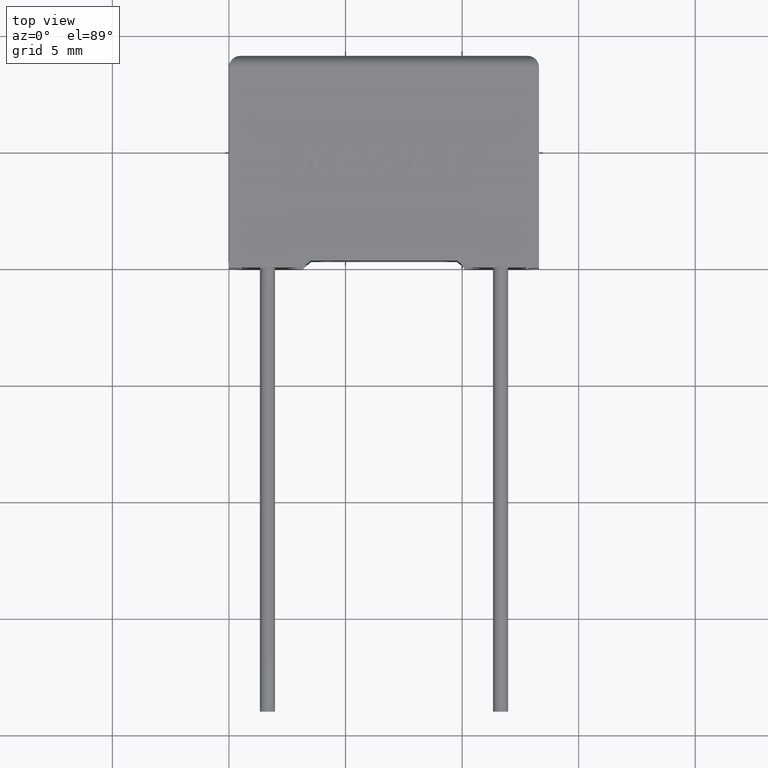
[diagram: clean part render]
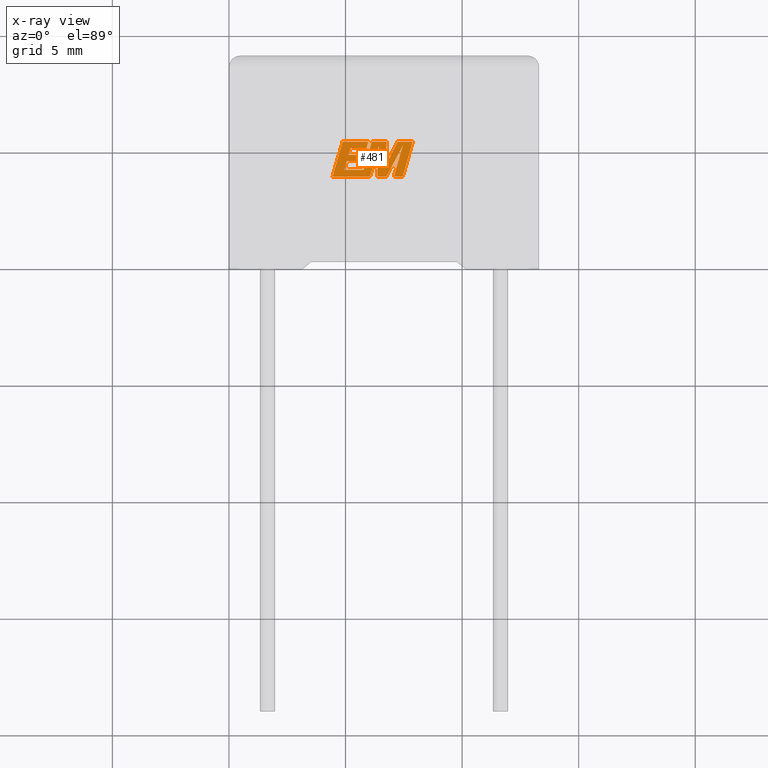
[diagram: x-ray — body ghosted, one internal face saturated and labeled with its STEP entity id]
A machine part, top view, then the same camera in x-ray: the body is ghosted and one INTERNAL B-rep face — a face not visible from any outside direction — is saturated and labeled: STEP entity #481.
In plain terms, the highlighted planar face has unit normal (0, 0, -1).
Its self-contained STEP definition (entity closure, byte-faithful):
#3 = ORIENTED_EDGE ( 'NONE', *, *, #1301, .F. ) ;
#8 = EDGE_LOOP ( 'NONE', ( #829, #1955, #192, #1013, #1528, #1600, #2295, #2156, #1083, #2772, #2115, #1565, #364, #3, #1548, #2187, #887, #1156, #1315, #2396, #1842, #1107, #1995 ) ) ;
#17 = EDGE_CURVE ( 'NONE', #1125, #512, #1982, .T. ) ;
#30 = EDGE_CURVE ( 'NONE', #949, #186, #311, .T. ) ;
#34 = LINE ( 'NONE', #2402, #1815 ) ;
#54 = VECTOR ( 'NONE', #2213, 1000.000000000000000 ) ;
#82 = CARTESIAN_POINT ( 'NONE',  ( 7.459126597573474626, 5.248369972565777530, 4.200000000000000178 ) ) ;
#84 = EDGE_CURVE ( 'NONE', #1098, #2170, #787, .T. ) ;
#183 = CARTESIAN_POINT ( 'NONE',  ( 7.229920909434990328, 5.405443973106108579, 4.200000000000000178 ) ) ;
#186 = VERTEX_POINT ( 'NONE', #725 ) ;
#187 = DIRECTION ( 'NONE',  ( -1.000000000000000000, 0.000000000000000000, 0.000000000000000000 ) ) ;
#192 = ORIENTED_EDGE ( 'NONE', *, *, #555, .F. ) ;
#194 = VECTOR ( 'NONE', #2544, 1000.000000000000227 ) ;
#205 = VECTOR ( 'NONE', #450, 1000.000000000000227 ) ;
#221 = EDGE_CURVE ( 'NONE', #2675, #297, #2654, .T. ) ;
#224 = VERTEX_POINT ( 'NONE', #550 ) ;
#229 = CARTESIAN_POINT ( 'NONE',  ( 4.952401843375706214, 4.199148987047177428, 4.200000000000000178 ) ) ;
#291 = VERTEX_POINT ( 'NONE', #799 ) ;
#294 = DIRECTION ( 'NONE',  ( 1.000000000000000000, 0.000000000000000000, 0.000000000000000000 ) ) ;
#297 = VERTEX_POINT ( 'NONE', #1606 ) ;
#299 = VECTOR ( 'NONE', #912, 1000.000000000000227 ) ;
#309 = CARTESIAN_POINT ( 'NONE',  ( 7.883299326082490843, 5.405443973106108579, 4.200000000000000178 ) ) ;
#311 = LINE ( 'NONE', #373, #392 ) ;
#314 = DIRECTION ( 'NONE',  ( -0.2762517575166416606, -0.9610853065513833560, 0.000000000000000000 ) ) ;
#350 = VECTOR ( 'NONE', #1032, 1000.000000000000227 ) ;
#364 = ORIENTED_EDGE ( 'NONE', *, *, #84, .F. ) ;
#373 = CARTESIAN_POINT ( 'NONE',  ( 7.229920909434990328, 5.405443973106108579, 4.200000000000000178 ) ) ;
#392 = VECTOR ( 'NONE', #2950, 1000.000000000000227 ) ;
#450 = DIRECTION ( 'NONE',  ( -0.2765379750249962743, -0.9610029908221277006, 0.000000000000000000 ) ) ;
#465 = DIRECTION ( 'NONE',  ( 0.2746459304916892830, 0.9615454294334481178, 0.000000000000000000 ) ) ;
#481 = ADVANCED_FACE ( 'NONE', ( #516 ), #2157, .T. ) ;
#489 = LINE ( 'NONE', #1005, #1185 ) ;
#491 = VERTEX_POINT ( 'NONE', #2616 ) ;
#494 = CARTESIAN_POINT ( 'NONE',  ( 7.076436226158152820, 3.915729999999953304, 4.200000000000000178 ) ) ;
#504 = VERTEX_POINT ( 'NONE', #82 ) ;
#512 = VERTEX_POINT ( 'NONE', #1466 ) ;
#516 = FACE_OUTER_BOUND ( 'NONE', #8, .T. ) ;
#525 = LINE ( 'NONE', #1697, #2573 ) ;
#550 = CARTESIAN_POINT ( 'NONE',  ( 6.759367558385069863, 5.405443973106108579, 4.200000000000000178 ) ) ;
#555 = EDGE_CURVE ( 'NONE', #2255, #3039, #1060, .T. ) ;
#560 = CARTESIAN_POINT ( 'NONE',  ( 6.755620608826641948, 3.915729999999953304, 4.200000000000000178 ) ) ;
#572 = LINE ( 'NONE', #2228, #846 ) ;
#574 = EDGE_CURVE ( 'NONE', #919, #291, #572, .T. ) ;
#602 = VERTEX_POINT ( 'NONE', #1727 ) ;
#603 = VERTEX_POINT ( 'NONE', #1742 ) ;
#617 = CARTESIAN_POINT ( 'NONE',  ( 6.759367558385069863, 5.405443973106108579, 4.200000000000000178 ) ) ;
#622 = DIRECTION ( 'NONE',  ( 0.4668459304955080436, 0.8843386665637680277, 0.000000000000000000 ) ) ;
#632 = VERTEX_POINT ( 'NONE', #560 ) ;
#685 = LINE ( 'NONE', #2568, #205 ) ;
#689 = EDGE_CURVE ( 'NONE', #1347, #2842, #3001, .T. ) ;
#707 = VECTOR ( 'NONE', #1270, 1000.000000000000000 ) ;
#708 = LINE ( 'NONE', #1670, #1531 ) ;
#725 = CARTESIAN_POINT ( 'NONE',  ( 6.702077418817857790, 4.341173170242924151, 4.200000000000000178 ) ) ;
#733 = CARTESIAN_POINT ( 'NONE',  ( -0.1616998804721296312, -0.9059898439282781935, 4.200000000000000178 ) ) ;
#739 = DIRECTION ( 'NONE',  ( -1.000000000000000000, 0.000000000000000000, 0.000000000000000000 ) ) ;
#770 = CARTESIAN_POINT ( 'NONE',  ( 5.778216917757634796, 4.199148987047177428, 4.200000000000000178 ) ) ;
#779 = DIRECTION ( 'NONE',  ( -1.000000000000000000, 0.000000000000000000, 0.000000000000000000 ) ) ;
#787 = LINE ( 'NONE', #1720, #790 ) ;
#790 = VECTOR ( 'NONE', #2561, 1000.000000000000000 ) ;
#799 = CARTESIAN_POINT ( 'NONE',  ( 6.052010438575782914, 3.915729999999953304, 4.200000000000000178 ) ) ;
#829 = ORIENTED_EDGE ( 'NONE', *, *, #2814, .F. ) ;
#846 = VECTOR ( 'NONE', #2941, 1000.000000000000000 ) ;
#857 = CARTESIAN_POINT ( 'NONE',  ( 4.447130607300954885, 3.915729999999952415, 4.200000000000000178 ) ) ;
#879 = LINE ( 'NONE', #1802, #194 ) ;
#887 = ORIENTED_EDGE ( 'NONE', *, *, #17, .F. ) ;
#912 = DIRECTION ( 'NONE',  ( 0.2759782365590697228, 0.9611638845408966292, 0.000000000000000000 ) ) ;
#919 = VERTEX_POINT ( 'NONE', #857 ) ;
#921 = EDGE_CURVE ( 'NONE', #632, #504, #1782, .T. ) ;
#949 = VERTEX_POINT ( 'NONE', #183 ) ;
#952 = LINE ( 'NONE', #2359, #2769 ) ;
#962 = EDGE_CURVE ( 'NONE', #491, #1059, #1613, .T. ) ;
#972 = DIRECTION ( 'NONE',  ( 0.2763139702539113007, 0.9610674221107073922, 0.000000000000000000 ) ) ;
#993 = AXIS2_PLACEMENT_3D ( 'NONE', #733, #1449, #779 ) ;
#1005 = CARTESIAN_POINT ( 'NONE',  ( 5.895824246829334037, 5.121884567512890563, 4.200000000000000178 ) ) ;
#1008 = CARTESIAN_POINT ( 'NONE',  ( 6.124951081427295385, 5.405443973106108579, 4.200000000000000178 ) ) ;
#1013 = ORIENTED_EDGE ( 'NONE', *, *, #1728, .F. ) ;
#1032 = DIRECTION ( 'NONE',  ( -0.2760118818968580467, -0.9611542233438683525, 0.000000000000000000 ) ) ;
#1059 = VERTEX_POINT ( 'NONE', #2353 ) ;
#1060 = LINE ( 'NONE', #2726, #1769 ) ;
#1083 = ORIENTED_EDGE ( 'NONE', *, *, #574, .F. ) ;
#1098 = VERTEX_POINT ( 'NONE', #1243 ) ;
#1107 = ORIENTED_EDGE ( 'NONE', *, *, #1396, .F. ) ;
#1125 = VERTEX_POINT ( 'NONE', #1503 ) ;
#1156 = ORIENTED_EDGE ( 'NONE', *, *, #1350, .F. ) ;
#1176 = CARTESIAN_POINT ( 'NONE',  ( 7.454995574460502539, 3.915729999999953304, 4.200000000000000178 ) ) ;
#1185 = VECTOR ( 'NONE', #1933, 1000.000000000000227 ) ;
#1201 = DIRECTION ( 'NONE',  ( -0.05596501978069368805, -0.9984327301130239141, 0.000000000000000000 ) ) ;
#1206 = DIRECTION ( 'NONE',  ( 0.05375259206908576670, 0.9985542843760946141, 0.000000000000000000 ) ) ;
#1243 = CARTESIAN_POINT ( 'NONE',  ( 5.217095337499665142, 5.121884567512890563, 4.200000000000000178 ) ) ;
#1267 = EDGE_CURVE ( 'NONE', #291, #2021, #1820, .T. ) ;
#1270 = DIRECTION ( 'NONE',  ( -1.000000000000000000, 0.000000000000000000, 0.000000000000000000 ) ) ;
#1301 = EDGE_CURVE ( 'NONE', #1059, #1098, #879, .T. ) ;
#1315 = ORIENTED_EDGE ( 'NONE', *, *, #221, .F. ) ;
#1347 = VERTEX_POINT ( 'NONE', #2337 ) ;
#1350 = EDGE_CURVE ( 'NONE', #297, #1125, #2746, .T. ) ;
#1356 = DIRECTION ( 'NONE',  ( -1.000000000000000000, 0.000000000000000000, 0.000000000000000000 ) ) ;
#1396 = EDGE_CURVE ( 'NONE', #186, #224, #708, .T. ) ;
#1426 = CARTESIAN_POINT ( 'NONE',  ( 4.875810319459591646, 5.405443973106108579, 4.200000000000000178 ) ) ;
#1449 = DIRECTION ( 'NONE',  ( 0.000000000000000000, 0.000000000000000000, -1.000000000000000000 ) ) ;
#1466 = CARTESIAN_POINT ( 'NONE',  ( 5.697209003994639254, 4.569400992816639473, 4.200000000000000178 ) ) ;
#1474 = VECTOR ( 'NONE', #2028, 1000.000000000000227 ) ;
#1503 = CARTESIAN_POINT ( 'NONE',  ( 5.057896940202134317, 4.569400992816639473, 4.200000000000000178 ) ) ;
#1528 = ORIENTED_EDGE ( 'NONE', *, *, #921, .F. ) ;
#1531 = VECTOR ( 'NONE', #1206, 1000.000000000000114 ) ;
#1548 = ORIENTED_EDGE ( 'NONE', *, *, #962, .F. ) ;
#1565 = ORIENTED_EDGE ( 'NONE', *, *, #1959, .F. ) ;
#1593 = CARTESIAN_POINT ( 'NONE',  ( 6.052010438575782914, 3.915729999999953304, 4.200000000000000178 ) ) ;
#1600 = ORIENTED_EDGE ( 'NONE', *, *, #1755, .F. ) ;
#1601 = CARTESIAN_POINT ( 'NONE',  ( 5.976361079013735811, 5.405443973106108579, 4.200000000000000178 ) ) ;
#1606 = CARTESIAN_POINT ( 'NONE',  ( 4.952401843375706214, 4.199148987047177428, 4.200000000000000178 ) ) ;
#1613 = LINE ( 'NONE', #2826, #1818 ) ;
#1636 = VECTOR ( 'NONE', #314, 1000.000000000000114 ) ;
#1670 = CARTESIAN_POINT ( 'NONE',  ( 6.702077418817857790, 4.341173170242924151, 4.200000000000000178 ) ) ;
#1697 = CARTESIAN_POINT ( 'NONE',  ( 6.432816483659342666, 5.241983193413731534, 4.200000000000000178 ) ) ;
#1714 = EDGE_CURVE ( 'NONE', #2021, #603, #525, .T. ) ;
#1720 = CARTESIAN_POINT ( 'NONE',  ( 5.217095337499665142, 5.121884567512890563, 4.200000000000000178 ) ) ;
#1727 = CARTESIAN_POINT ( 'NONE',  ( 6.124951081427295385, 5.405443973106108579, 4.200000000000000178 ) ) ;
#1728 = EDGE_CURVE ( 'NONE', #504, #2255, #2874, .T. ) ;
#1742 = CARTESIAN_POINT ( 'NONE',  ( 6.358476186146051923, 3.915729999999953304, 4.200000000000000178 ) ) ;
#1755 = EDGE_CURVE ( 'NONE', #603, #632, #2659, .T. ) ;
#1769 = VECTOR ( 'NONE', #2209, 1000.000000000000000 ) ;
#1771 = VERTEX_POINT ( 'NONE', #2888 ) ;
#1773 = VECTOR ( 'NONE', #622, 1000.000000000000114 ) ;
#1782 = LINE ( 'NONE', #2693, #1773 ) ;
#1802 = CARTESIAN_POINT ( 'NONE',  ( 5.136467912703279737, 4.844798004056813490, 4.200000000000000178 ) ) ;
#1815 = VECTOR ( 'NONE', #972, 1000.000000000000114 ) ;
#1818 = VECTOR ( 'NONE', #1356, 1000.000000000000000 ) ;
#1820 = LINE ( 'NONE', #1593, #299 ) ;
#1839 = CARTESIAN_POINT ( 'NONE',  ( 5.895824246829334037, 5.121884567512890563, 4.200000000000000178 ) ) ;
#1842 = ORIENTED_EDGE ( 'NONE', *, *, #2894, .F. ) ;
#1867 = VECTOR ( 'NONE', #187, 1000.000000000000000 ) ;
#1887 = CARTESIAN_POINT ( 'NONE',  ( 6.432816483659342666, 5.241983193413731534, 4.200000000000000178 ) ) ;
#1933 = DIRECTION ( 'NONE',  ( 0.2732148821746286371, 0.9619530280415482526, 0.000000000000000000 ) ) ;
#1950 = DIRECTION ( 'NONE',  ( 1.000000000000000000, 0.000000000000000000, 0.000000000000000000 ) ) ;
#1955 = ORIENTED_EDGE ( 'NONE', *, *, #2045, .F. ) ;
#1959 = EDGE_CURVE ( 'NONE', #2170, #1347, #489, .T. ) ;
#1982 = LINE ( 'NONE', #2921, #2364 ) ;
#1995 = ORIENTED_EDGE ( 'NONE', *, *, #30, .F. ) ;
#2021 = VERTEX_POINT ( 'NONE', #1887 ) ;
#2028 = DIRECTION ( 'NONE',  ( 0.2740217765954066076, 0.9617234872620595842, 0.000000000000000000 ) ) ;
#2045 = EDGE_CURVE ( 'NONE', #3039, #1771, #34, .T. ) ;
#2113 = CARTESIAN_POINT ( 'NONE',  ( 5.778216917757634796, 4.199148987047177428, 4.200000000000000178 ) ) ;
#2115 = ORIENTED_EDGE ( 'NONE', *, *, #689, .F. ) ;
#2156 = ORIENTED_EDGE ( 'NONE', *, *, #1267, .F. ) ;
#2157 = PLANE ( 'NONE',  #993 ) ;
#2170 = VERTEX_POINT ( 'NONE', #1839 ) ;
#2187 = ORIENTED_EDGE ( 'NONE', *, *, #2214, .F. ) ;
#2209 = DIRECTION ( 'NONE',  ( 1.000000000000000000, 0.000000000000000000, 0.000000000000000000 ) ) ;
#2213 = DIRECTION ( 'NONE',  ( -1.000000000000000000, 0.000000000000000000, 0.000000000000000000 ) ) ;
#2214 = EDGE_CURVE ( 'NONE', #512, #491, #952, .T. ) ;
#2228 = CARTESIAN_POINT ( 'NONE',  ( 5.786845862874964830, 3.915729999999953304, 4.200000000000000178 ) ) ;
#2255 = VERTEX_POINT ( 'NONE', #494 ) ;
#2295 = ORIENTED_EDGE ( 'NONE', *, *, #1714, .F. ) ;
#2337 = CARTESIAN_POINT ( 'NONE',  ( 5.976361079013735811, 5.405443973106108579, 4.200000000000000178 ) ) ;
#2353 = CARTESIAN_POINT ( 'NONE',  ( 5.136467912703279737, 4.844798004056813490, 4.200000000000000178 ) ) ;
#2359 = CARTESIAN_POINT ( 'NONE',  ( 5.697209003994639254, 4.569400992816639473, 4.200000000000000178 ) ) ;
#2363 = EDGE_CURVE ( 'NONE', #2842, #919, #685, .T. ) ;
#2364 = VECTOR ( 'NONE', #1950, 1000.000000000000000 ) ;
#2396 = ORIENTED_EDGE ( 'NONE', *, *, #2401, .F. ) ;
#2401 = EDGE_CURVE ( 'NONE', #602, #2675, #2647, .T. ) ;
#2402 = CARTESIAN_POINT ( 'NONE',  ( 7.454995574460502539, 3.915729999999953304, 4.200000000000000178 ) ) ;
#2405 = CARTESIAN_POINT ( 'NONE',  ( 6.358476186146051923, 3.915729999999953304, 4.200000000000000178 ) ) ;
#2544 = DIRECTION ( 'NONE',  ( 0.2793947940878294123, 0.9601763114327593884, 0.000000000000000000 ) ) ;
#2561 = DIRECTION ( 'NONE',  ( 1.000000000000000000, 0.000000000000000000, 0.000000000000000000 ) ) ;
#2568 = CARTESIAN_POINT ( 'NONE',  ( 4.875810319459591646, 5.405443973106108579, 4.200000000000000178 ) ) ;
#2573 = VECTOR ( 'NONE', #1201, 1000.000000000000114 ) ;
#2616 = CARTESIAN_POINT ( 'NONE',  ( 5.775870569107848240, 4.844798004056813490, 4.200000000000000178 ) ) ;
#2619 = VECTOR ( 'NONE', #294, 1000.000000000000000 ) ;
#2647 = LINE ( 'NONE', #1008, #1636 ) ;
#2654 = LINE ( 'NONE', #770, #54 ) ;
#2659 = LINE ( 'NONE', #2405, #2619 ) ;
#2675 = VERTEX_POINT ( 'NONE', #2113 ) ;
#2693 = CARTESIAN_POINT ( 'NONE',  ( 6.755620608826641948, 3.915729999999953304, 4.200000000000000178 ) ) ;
#2726 = CARTESIAN_POINT ( 'NONE',  ( 7.076436226158152820, 3.915729999999953304, 4.200000000000000178 ) ) ;
#2727 = VECTOR ( 'NONE', #739, 1000.000000000000000 ) ;
#2736 = LINE ( 'NONE', #617, #707 ) ;
#2746 = LINE ( 'NONE', #229, #1474 ) ;
#2769 = VECTOR ( 'NONE', #465, 1000.000000000000000 ) ;
#2772 = ORIENTED_EDGE ( 'NONE', *, *, #2363, .F. ) ;
#2814 = EDGE_CURVE ( 'NONE', #1771, #949, #2918, .T. ) ;
#2826 = CARTESIAN_POINT ( 'NONE',  ( 5.775870569107848240, 4.844798004056813490, 4.200000000000000178 ) ) ;
#2842 = VERTEX_POINT ( 'NONE', #1426 ) ;
#2855 = CARTESIAN_POINT ( 'NONE',  ( 7.459126597573474626, 5.248369972565777530, 4.200000000000000178 ) ) ;
#2874 = LINE ( 'NONE', #2855, #350 ) ;
#2888 = CARTESIAN_POINT ( 'NONE',  ( 7.883299326082490843, 5.405443973106108579, 4.200000000000000178 ) ) ;
#2894 = EDGE_CURVE ( 'NONE', #224, #602, #2736, .T. ) ;
#2918 = LINE ( 'NONE', #309, #2727 ) ;
#2921 = CARTESIAN_POINT ( 'NONE',  ( 5.057896940202134317, 4.569400992816639473, 4.200000000000000178 ) ) ;
#2941 = DIRECTION ( 'NONE',  ( 1.000000000000000000, 0.000000000000000000, 0.000000000000000000 ) ) ;
#2950 = DIRECTION ( 'NONE',  ( -0.4443210308329518243, -0.8958676361826801715, 0.000000000000000000 ) ) ;
#3001 = LINE ( 'NONE', #1601, #1867 ) ;
#3039 = VERTEX_POINT ( 'NONE', #1176 ) ;